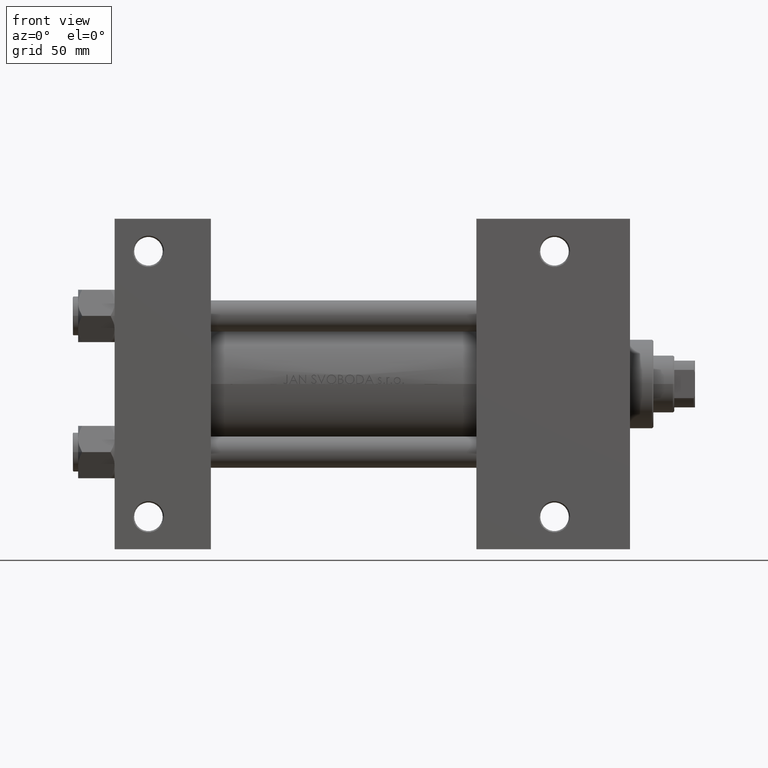
[diagram: clean part render]
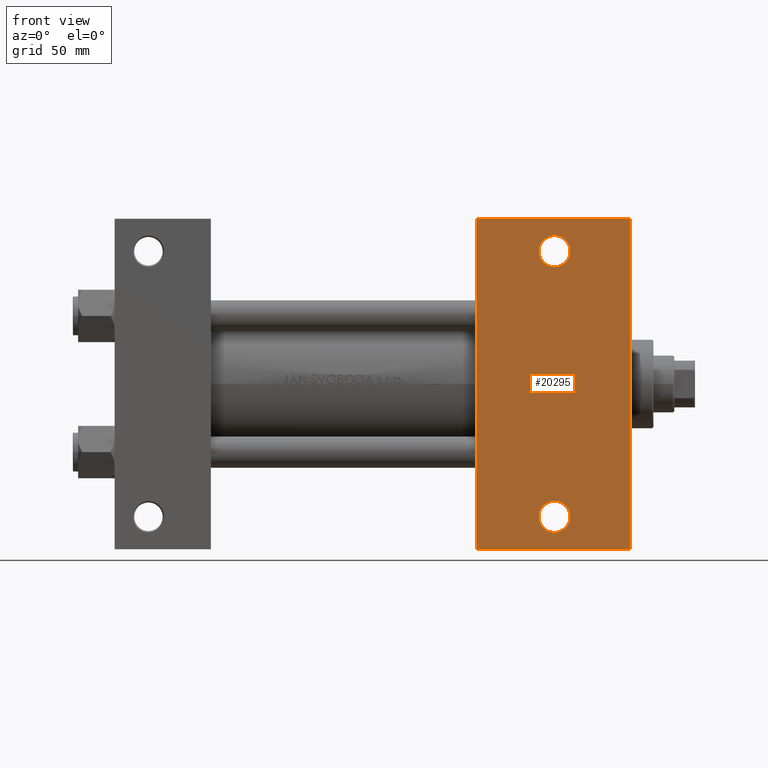
[diagram: same view with one face highlighted and labeled with its STEP entity id]
A machine part, front view. The second image highlights one B-rep face of the part: STEP entity #20295.
In plain terms, the highlighted planar face has unit normal (0, -1, 0).
Its self-contained STEP definition (entity closure, byte-faithful):
#241 = VERTEX_POINT ( 'NONE', #18492 ) ;
#335 = ORIENTED_EDGE ( 'NONE', *, *, #5957, .T. ) ;
#403 = ORIENTED_EDGE ( 'NONE', *, *, #39199, .T. ) ;
#1812 = CIRCLE ( 'NONE', #16094, 5.999499999999990507 ) ;
#2805 = ORIENTED_EDGE ( 'NONE', *, *, #48070, .T. ) ;
#4017 = EDGE_CURVE ( 'NONE', #27552, #40600, #7281, .T. ) ;
#4567 = VERTEX_POINT ( 'NONE', #30070 ) ;
#5223 = LINE ( 'NONE', #47062, #41460 ) ;
#5957 = EDGE_CURVE ( 'NONE', #17281, #37054, #1812, .T. ) ;
#6281 = EDGE_CURVE ( 'NONE', #37054, #17281, #31232, .T. ) ;
#7048 = DIRECTION ( 'NONE',  ( -0.000000000000000000, -0.000000000000000000, 1.000000000000000000 ) ) ;
#7281 = CIRCLE ( 'NONE', #13680, 5.999499999999990507 ) ;
#8675 = DIRECTION ( 'NONE',  ( 0.000000000000000000, -1.000000000000000000, 0.000000000000000000 ) ) ;
#10032 = CARTESIAN_POINT ( 'NONE',  ( 168.9999999999999716, -51.00000000000000000, -37.50000000000000000 ) ) ;
#11817 = ORIENTED_EDGE ( 'NONE', *, *, #39864, .F. ) ;
#12278 = VERTEX_POINT ( 'NONE', #46128 ) ;
#12413 = CARTESIAN_POINT ( 'NONE',  ( 174.9994999999999834, -51.00000000000000000, -37.50000000000000000 ) ) ;
#13680 = AXIS2_PLACEMENT_3D ( 'NONE', #37924, #46124, #15497 ) ;
#14288 = FACE_BOUND ( 'NONE', #46943, .T. ) ;
#15044 = DIRECTION ( 'NONE',  ( -0.000000000000000000, -0.000000000000000000, 1.000000000000000000 ) ) ;
#15344 = VERTEX_POINT ( 'NONE', #27108 ) ;
#15497 = DIRECTION ( 'NONE',  ( -1.000000000000000000, 0.000000000000000000, 0.000000000000000000 ) ) ;
#16094 = AXIS2_PLACEMENT_3D ( 'NONE', #10032, #7048, #22237 ) ;
#16623 = LINE ( 'NONE', #39292, #40376 ) ;
#17281 = VERTEX_POINT ( 'NONE', #37887 ) ;
#17713 = ORIENTED_EDGE ( 'NONE', *, *, #6281, .T. ) ;
#18492 = CARTESIAN_POINT ( 'NONE',  ( 138.9999999999999716, -63.50000000000000000, -37.50000000000000000 ) ) ;
#20295 = ADVANCED_FACE ( 'NONE', ( #36453, #14288, #25004 ), #28963, .T. ) ;
#20666 = DIRECTION ( 'NONE',  ( 1.000000000000000000, 4.704334850106593822E-16, 0.000000000000000000 ) ) ;
#22237 = DIRECTION ( 'NONE',  ( -1.000000000000000000, 0.000000000000000000, 0.000000000000000000 ) ) ;
#22494 = AXIS2_PLACEMENT_3D ( 'NONE', #33891, #26660, #49088 ) ;
#22665 = EDGE_LOOP ( 'NONE', ( #25100, #28223 ) ) ;
#22948 = CARTESIAN_POINT ( 'NONE',  ( 174.9994999999999834, 51.00000000000000711, -37.50000000000000000 ) ) ;
#24151 = DIRECTION ( 'NONE',  ( -1.000000000000000000, 4.704334850106593822E-16, -0.000000000000000000 ) ) ;
#24420 = LINE ( 'NONE', #39615, #36428 ) ;
#25004 = FACE_OUTER_BOUND ( 'NONE', #28763, .T. ) ;
#25100 = ORIENTED_EDGE ( 'NONE', *, *, #4017, .T. ) ;
#25747 = DIRECTION ( 'NONE',  ( 0.000000000000000000, 0.000000000000000000, -1.000000000000000000 ) ) ;
#26660 = DIRECTION ( 'NONE',  ( -0.000000000000000000, -0.000000000000000000, 1.000000000000000000 ) ) ;
#26876 = CIRCLE ( 'NONE', #41983, 5.999499999999990507 ) ;
#27108 = CARTESIAN_POINT ( 'NONE',  ( 198.0000000000000284, 63.50000000000000000, -37.50000000000000000 ) ) ;
#27552 = VERTEX_POINT ( 'NONE', #41662 ) ;
#28223 = ORIENTED_EDGE ( 'NONE', *, *, #40255, .T. ) ;
#28763 = EDGE_LOOP ( 'NONE', ( #11817, #43299, #403, #2805 ) ) ;
#28963 = PLANE ( 'NONE',  #33145 ) ;
#29460 = CARTESIAN_POINT ( 'NONE',  ( 197.9999999999999716, 37.50000000000000000, -37.50000000000000000 ) ) ;
#30070 = CARTESIAN_POINT ( 'NONE',  ( 139.0000000000000000, 63.49999999999997158, -37.50000000000000000 ) ) ;
#30225 = DIRECTION ( 'NONE',  ( -1.000000000000000000, 0.000000000000000000, 0.000000000000000000 ) ) ;
#31096 = CARTESIAN_POINT ( 'NONE',  ( 197.9999999999999716, 37.50000000000000000, -37.50000000000000000 ) ) ;
#31232 = CIRCLE ( 'NONE', #22494, 5.999499999999990507 ) ;
#33145 = AXIS2_PLACEMENT_3D ( 'NONE', #29460, #25747, #40930 ) ;
#33891 = CARTESIAN_POINT ( 'NONE',  ( 168.9999999999999716, -51.00000000000000000, -37.50000000000000000 ) ) ;
#36428 = VECTOR ( 'NONE', #20666, 1000.000000000000000 ) ;
#36453 = FACE_BOUND ( 'NONE', #22665, .T. ) ;
#37054 = VERTEX_POINT ( 'NONE', #12413 ) ;
#37887 = CARTESIAN_POINT ( 'NONE',  ( 163.0004999999999882, -51.00000000000000000, -37.50000000000000000 ) ) ;
#37924 = CARTESIAN_POINT ( 'NONE',  ( 168.9999999999999716, 51.00000000000000711, -37.50000000000000000 ) ) ;
#37974 = VECTOR ( 'NONE', #8675, 1000.000000000000000 ) ;
#39037 = DIRECTION ( 'NONE',  ( 0.000000000000000000, -1.000000000000000000, 0.000000000000000000 ) ) ;
#39199 = EDGE_CURVE ( 'NONE', #15344, #12278, #42801, .T. ) ;
#39292 = CARTESIAN_POINT ( 'NONE',  ( 138.9999999999999716, 37.50000000000000000, -37.50000000000000000 ) ) ;
#39615 = CARTESIAN_POINT ( 'NONE',  ( 139.0000000000000000, 63.49999999999997158, -37.50000000000000000 ) ) ;
#39864 = EDGE_CURVE ( 'NONE', #4567, #241, #16623, .T. ) ;
#40255 = EDGE_CURVE ( 'NONE', #40600, #27552, #26876, .T. ) ;
#40376 = VECTOR ( 'NONE', #39037, 1000.000000000000000 ) ;
#40600 = VERTEX_POINT ( 'NONE', #22948 ) ;
#40930 = DIRECTION ( 'NONE',  ( -1.000000000000000000, 0.000000000000000000, -0.000000000000000000 ) ) ;
#41460 = VECTOR ( 'NONE', #24151, 1000.000000000000000 ) ;
#41662 = CARTESIAN_POINT ( 'NONE',  ( 163.0004999999999882, 51.00000000000000711, -37.50000000000000000 ) ) ;
#41983 = AXIS2_PLACEMENT_3D ( 'NONE', #49177, #15044, #30225 ) ;
#42801 = LINE ( 'NONE', #31096, #37974 ) ;
#43299 = ORIENTED_EDGE ( 'NONE', *, *, #44402, .T. ) ;
#44402 = EDGE_CURVE ( 'NONE', #4567, #15344, #24420, .T. ) ;
#46124 = DIRECTION ( 'NONE',  ( -0.000000000000000000, -0.000000000000000000, 1.000000000000000000 ) ) ;
#46128 = CARTESIAN_POINT ( 'NONE',  ( 198.0000000000000000, -63.50000000000002842, -37.50000000000000000 ) ) ;
#46943 = EDGE_LOOP ( 'NONE', ( #335, #17713 ) ) ;
#47062 = CARTESIAN_POINT ( 'NONE',  ( 138.9999999999999716, -63.50000000000000000, -37.50000000000000000 ) ) ;
#48070 = EDGE_CURVE ( 'NONE', #12278, #241, #5223, .T. ) ;
#49088 = DIRECTION ( 'NONE',  ( -1.000000000000000000, 0.000000000000000000, 0.000000000000000000 ) ) ;
#49177 = CARTESIAN_POINT ( 'NONE',  ( 168.9999999999999716, 51.00000000000000711, -37.50000000000000000 ) ) ;